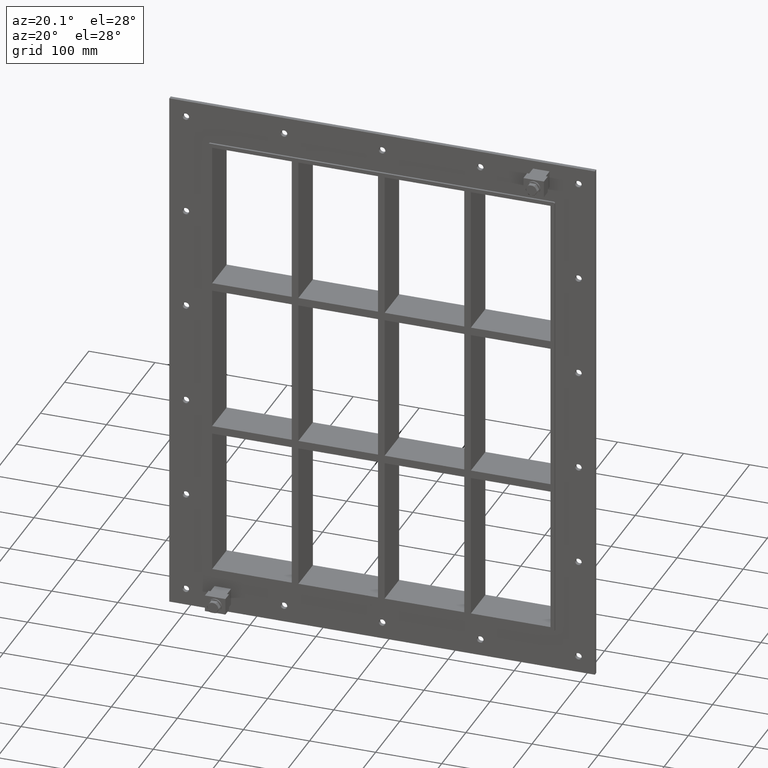
[diagram: clean part render]
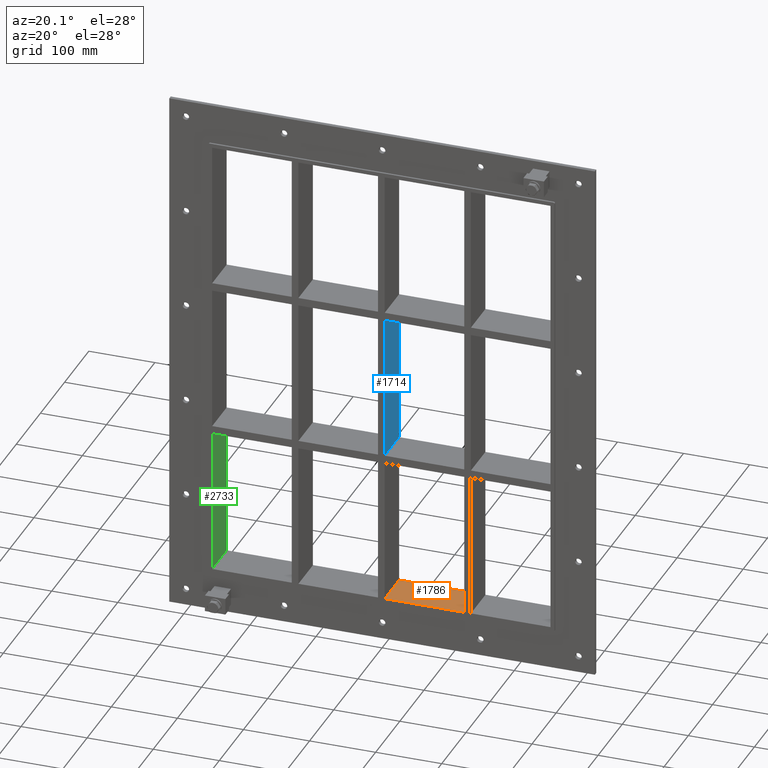
[diagram: same view with three faces highlighted in distinct colors, each labeled with its STEP entity id]
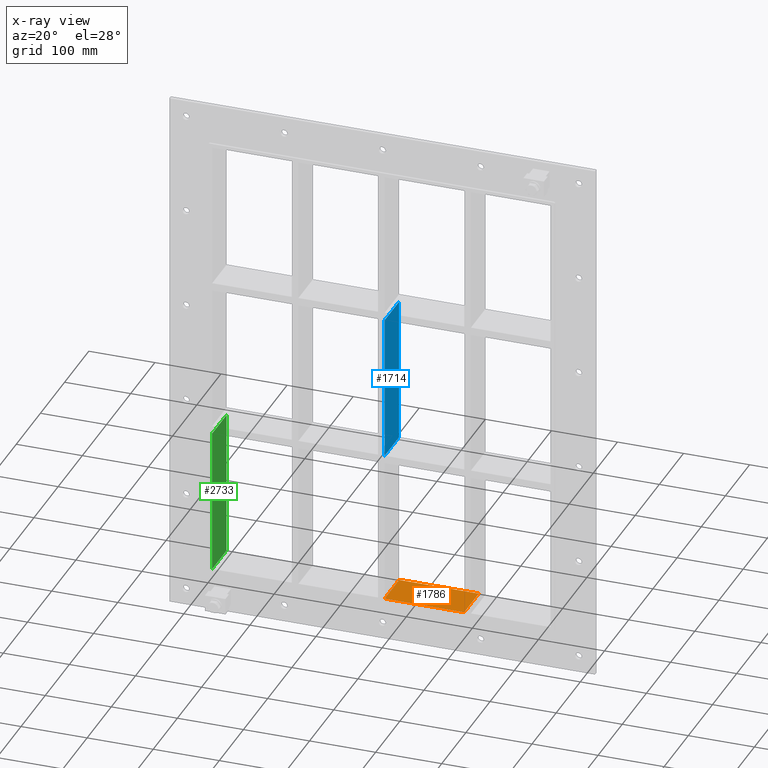
[diagram: x-ray of the same camera — body ghosted, the three highlighted faces saturated]
A machine part, auxiliary view with three faces highlighted in distinct colors.
The next image is the same camera in x-ray (body ghosted, the three faces saturated) — at least one of them is partly hidden behind the body in this view.
Their STEP definitions:

[orange] entity #1786 — the highlighted planar face has unit normal (0, 0, -1).
#1446=CARTESIAN_POINT('',(125.49999999999976,57.0,-339.00000000000006));
#1447=VERTEX_POINT('',#1446);
#1464=CARTESIAN_POINT('',(5.000000000007283,57.0,-338.9999999999817));
#1465=VERTEX_POINT('',#1464);
#1472=CARTESIAN_POINT('',(5.000000000007276,57.0,-339.00000000000006));
#1473=DIRECTION('',(1.0,0.0,0.0));
#1474=VECTOR('',#1473,120.49999999999247);
#1475=LINE('',#1472,#1474);
#1476=EDGE_CURVE('',#1465,#1447,#1475,.T.);
#1564=CARTESIAN_POINT('',(125.49999999999976,-3.0,-339.00000000000006));
#1565=VERTEX_POINT('',#1564);
#1566=CARTESIAN_POINT('',(125.49999999999976,-3.0,-339.00000000000006));
#1567=DIRECTION('',(0.0,1.0,0.0));
#1568=VECTOR('',#1567,60.000000000000007);
#1569=LINE('',#1566,#1568);
#1570=EDGE_CURVE('',#1565,#1447,#1569,.T.);
#1728=CARTESIAN_POINT('',(5.000000000007283,-3.0,-338.9999999999817));
#1729=VERTEX_POINT('',#1728);
#1736=CARTESIAN_POINT('',(5.000000000007283,57.000000000000007,-339.00000000000006));
#1737=DIRECTION('',(0.0,-1.0,0.0));
#1738=VECTOR('',#1737,60.000000000000007);
#1739=LINE('',#1736,#1738);
#1740=EDGE_CURVE('',#1465,#1729,#1739,.T.);
#1770=CARTESIAN_POINT('',(256.0,0.0,-339.00000000000006));
#1771=DIRECTION('',(0.0,0.0,-1.0));
#1772=DIRECTION('',(-1.0,0.0,0.0));
#1773=AXIS2_PLACEMENT_3D('',#1770,#1771,#1772);
#1774=PLANE('',#1773);
#1775=ORIENTED_EDGE('',*,*,#1570,.T.);
#1776=ORIENTED_EDGE('',*,*,#1476,.F.);
#1777=ORIENTED_EDGE('',*,*,#1740,.T.);
#1778=CARTESIAN_POINT('',(125.49999999999974,-3.0,-339.00000000000006));
#1779=DIRECTION('',(-1.0,0.0,0.0));
#1780=VECTOR('',#1779,120.49999999999247);
#1781=LINE('',#1778,#1780);
#1782=EDGE_CURVE('',#1565,#1729,#1781,.T.);
#1783=ORIENTED_EDGE('',*,*,#1782,.F.);
#1784=EDGE_LOOP('',(#1775,#1776,#1777,#1783));
#1785=FACE_OUTER_BOUND('',#1784,.T.);
#1786=ADVANCED_FACE('',(#1785),#1774,.F.);

[blue] entity #1714 — the highlighted planar face has unit normal (1, 0, 0).
#707=CARTESIAN_POINT('',(5.000000000007283,-3.0,108.9999999999887));
#708=VERTEX_POINT('',#707);
#715=CARTESIAN_POINT('',(5.000000000007283,57.0,108.9999999999887));
#716=VERTEX_POINT('',#715);
#717=CARTESIAN_POINT('',(5.000000000007283,57.0,108.9999999999887));
#718=DIRECTION('',(0.0,-1.0,0.0));
#719=VECTOR('',#718,60.0);
#720=LINE('',#717,#719);
#721=EDGE_CURVE('',#716,#708,#720,.T.);
#1329=CARTESIAN_POINT('',(5.000000000007283,57.0,-108.99999999999977));
#1330=VERTEX_POINT('',#1329);
#1331=CARTESIAN_POINT('',(5.000000000007283,57.0,108.99999999998869));
#1332=DIRECTION('',(0.0,0.0,-1.0));
#1333=VECTOR('',#1332,217.99999999998846);
#1334=LINE('',#1331,#1333);
#1335=EDGE_CURVE('',#716,#1330,#1334,.T.);
#1691=CARTESIAN_POINT('',(5.000000000007283,-3.0,339.00000000000006));
#1692=DIRECTION('',(1.0,0.0,0.0));
#1693=DIRECTION('',(0.0,0.0,-1.0));
#1694=AXIS2_PLACEMENT_3D('',#1691,#1692,#1693);
#1695=PLANE('',#1694);
#1696=ORIENTED_EDGE('',*,*,#721,.T.);
#1697=CARTESIAN_POINT('',(5.000000000007283,-3.0,-108.99999999999977));
#1698=VERTEX_POINT('',#1697);
#1699=CARTESIAN_POINT('',(5.000000000007283,-3.0,108.99999999998869));
#1700=DIRECTION('',(0.0,0.0,-1.0));
#1701=VECTOR('',#1700,217.99999999998846);
#1702=LINE('',#1699,#1701);
#1703=EDGE_CURVE('',#708,#1698,#1702,.T.);
#1704=ORIENTED_EDGE('',*,*,#1703,.T.);
#1705=CARTESIAN_POINT('',(5.000000000007283,57.0,-108.99999999999977));
#1706=DIRECTION('',(0.0,-1.0,0.0));
#1707=VECTOR('',#1706,60.0);
#1708=LINE('',#1705,#1707);
#1709=EDGE_CURVE('',#1330,#1698,#1708,.T.);
#1710=ORIENTED_EDGE('',*,*,#1709,.F.);
#1711=ORIENTED_EDGE('',*,*,#1335,.F.);
#1712=EDGE_LOOP('',(#1696,#1704,#1710,#1711));
#1713=FACE_OUTER_BOUND('',#1712,.T.);
#1714=ADVANCED_FACE('',(#1713),#1695,.T.);

[green] entity #2733 — the highlighted planar face has unit normal (-1, 0, 0).
#1378=CARTESIAN_POINT('',(-255.99999999999864,57.0,-121.0000000000116));
#1379=VERTEX_POINT('',#1378);
#1380=CARTESIAN_POINT('',(-256.0,57.0,-339.00000000000006));
#1381=VERTEX_POINT('',#1380);
#1382=CARTESIAN_POINT('',(-256.0,57.0,-121.0000000000116));
#1383=DIRECTION('',(0.0,0.0,-1.0));
#1384=VECTOR('',#1383,217.99999999998846);
#1385=LINE('',#1382,#1384);
#1386=EDGE_CURVE('',#1379,#1381,#1385,.T.);
#2037=CARTESIAN_POINT('',(-255.99999999999864,-3.0,-121.0000000000116));
#2038=VERTEX_POINT('',#2037);
#2053=CARTESIAN_POINT('',(-256.0,-3.0,-339.00000000000006));
#2054=VERTEX_POINT('',#2053);
#2061=CARTESIAN_POINT('',(-256.0,-3.0,-339.00000000000006));
#2062=DIRECTION('',(0.0,0.0,1.0));
#2063=VECTOR('',#2062,217.99999999998846);
#2064=LINE('',#2061,#2063);
#2065=EDGE_CURVE('',#2054,#2038,#2064,.T.);
#2193=CARTESIAN_POINT('',(-256.0,57.000000000000007,-121.00000000001161));
#2194=DIRECTION('',(0.0,-1.0,0.0));
#2195=VECTOR('',#2194,60.000000000000007);
#2196=LINE('',#2193,#2195);
#2197=EDGE_CURVE('',#1379,#2038,#2196,.T.);
#2304=CARTESIAN_POINT('',(-256.0,-3.0,-339.00000000000006));
#2305=DIRECTION('',(0.0,1.0,0.0));
#2306=VECTOR('',#2305,60.0);
#2307=LINE('',#2304,#2306);
#2308=EDGE_CURVE('',#2054,#1381,#2307,.T.);
#2722=CARTESIAN_POINT('',(-256.0,0.0,-339.00000000000006));
#2723=DIRECTION('',(-1.0,0.0,0.0));
#2724=DIRECTION('',(0.0,0.0,1.0));
#2725=AXIS2_PLACEMENT_3D('',#2722,#2723,#2724);
#2726=PLANE('',#2725);
#2727=ORIENTED_EDGE('',*,*,#2197,.T.);
#2728=ORIENTED_EDGE('',*,*,#2065,.F.);
#2729=ORIENTED_EDGE('',*,*,#2308,.T.);
#2730=ORIENTED_EDGE('',*,*,#1386,.F.);
#2731=EDGE_LOOP('',(#2727,#2728,#2729,#2730));
#2732=FACE_OUTER_BOUND('',#2731,.T.);
#2733=ADVANCED_FACE('',(#2732),#2726,.F.);